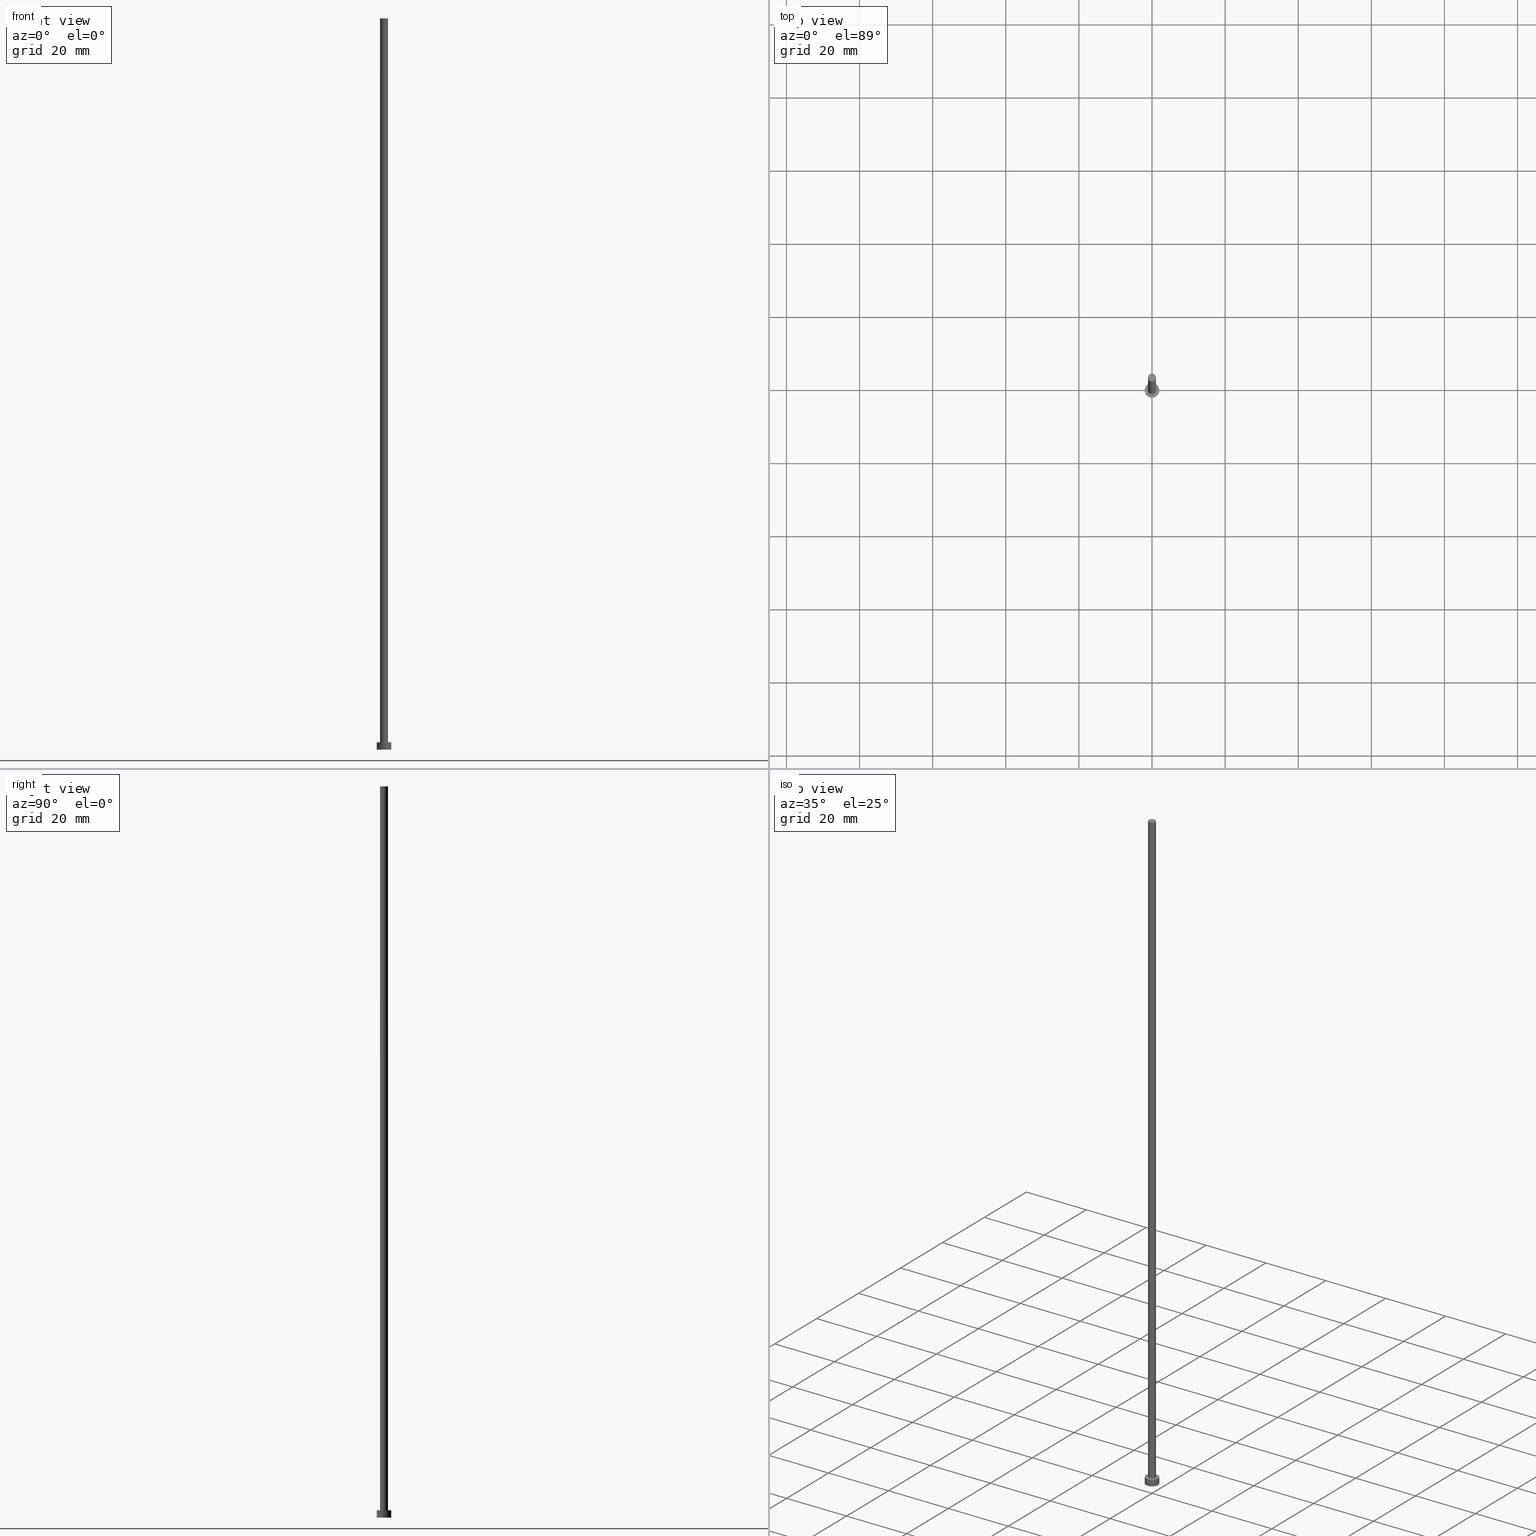
[diagram: canonical four-view strip — front | top / right | iso, engineering-drawing reading convention]
A machine part, canonical four-view strip (front | top / right | iso — engineering-drawing reading convention). The complete STEP part file that produces these views, byte-faithful:
ISO-10303-21;
HEADER;
FILE_DESCRIPTION (( 'STEP AP203' ),
    '1' );
FILE_NAME ('48ea.STEP',
    '2023-02-13T17:06:06',
    ( '' ),
    ( '' ),
    'SwSTEP 2.0',
    'SolidWorks 2019',
    '' );
FILE_SCHEMA (( 'CONFIG_CONTROL_DESIGN' ));
ENDSEC;

DATA;
#1 = CIRCLE ( 'NONE', #154, 2.000000000000000000 ) ;
#2 = DIRECTION ( 'NONE',  ( 1.000000000000000000, 0.000000000000000000, 0.000000000000000000 ) ) ;
#3 = VECTOR ( 'NONE', #12, 1000.000000000000000 ) ;
#4 = PERSON_AND_ORGANIZATION ( #229, #138 ) ;
#5 = VERTEX_POINT ( 'NONE', #105 ) ;
#6 = VECTOR ( 'NONE', #153, 1000.000000000000000 ) ;
#7 = CIRCLE ( 'NONE', #62, 1.100000000000000089 ) ;
#8 = FACE_OUTER_BOUND ( 'NONE', #222, .T. ) ;
#9 = VERTEX_POINT ( 'NONE', #92 ) ;
#10 = FACE_OUTER_BOUND ( 'NONE', #169, .T. ) ;
#11 = ORIENTED_EDGE ( 'NONE', *, *, #30, .T. ) ;
#12 = DIRECTION ( 'NONE',  ( -0.000000000000000000, -0.000000000000000000, -1.000000000000000000 ) ) ;
#13 = ORIENTED_EDGE ( 'NONE', *, *, #110, .F. ) ;
#14 = UNCERTAINTY_MEASURE_WITH_UNIT (LENGTH_MEASURE( 1.000000000000000082E-05 ), #33, 'distance_accuracy_value', 'NONE');
#15 = DIRECTION ( 'NONE',  ( 1.000000000000000000, 0.000000000000000000, -0.000000000000000000 ) ) ;
#16 = EDGE_LOOP ( 'NONE', ( #67, #254, #87, #71 ) ) ;
#17 = CARTESIAN_POINT ( 'NONE',  ( 2.000000000000000000, 2.449293598294706414E-16, 2.000000000000000000 ) ) ;
#18 = APPLICATION_CONTEXT ( 'configuration controlled 3d designs of mechanical parts and assemblies' ) ;
#19 = CIRCLE ( 'NONE', #159, 2.000000000000000000 ) ;
#20 = SECURITY_CLASSIFICATION_LEVEL ( 'unclassified' ) ;
#21 = DIRECTION ( 'NONE',  ( 1.000000000000000000, 0.000000000000000000, 0.000000000000000000 ) ) ;
#22 = EDGE_CURVE ( 'NONE', #5, #9, #164, .T. ) ;
#23 = PERSON_AND_ORGANIZATION ( #229, #138 ) ;
#24 = CYLINDRICAL_SURFACE ( 'NONE', #83, 2.000000000000000000 ) ;
#25 = APPROVAL_ROLE ( '' ) ;
#26 = LINE ( 'NONE', #17, #6 ) ;
#27 = CARTESIAN_POINT ( 'NONE',  ( 0.000000000000000000, 0.000000000000000000, 200.0000000000000000 ) ) ;
#28 = APPROVAL_DATE_TIME ( #61, #73 ) ;
#29 = APPROVAL_PERSON_ORGANIZATION ( #42, #97, #211 ) ;
#30 = EDGE_CURVE ( 'NONE', #5, #90, #26, .T. ) ;
#31 = LOCAL_TIME ( 18, 6, 6.000000000000000000, #233 ) ;
#32 = ORIENTED_EDGE ( 'NONE', *, *, #241, .T. ) ;
#33 =( LENGTH_UNIT ( ) NAMED_UNIT ( * ) SI_UNIT ( .MILLI., .METRE. ) );
#34 = DIRECTION ( 'NONE',  ( -0.000000000000000000, -0.000000000000000000, -1.000000000000000000 ) ) ;
#35 = LOCAL_TIME ( 18, 6, 6.000000000000000000, #152 ) ;
#36 = DIRECTION ( 'NONE',  ( 0.000000000000000000, 0.000000000000000000, 1.000000000000000000 ) ) ;
#37 = CLOSED_SHELL ( 'NONE', ( #255, #134, #85, #60, #151, #199, #184 ) ) ;
#38 = APPROVAL_DATE_TIME ( #214, #247 ) ;
#39 = EDGE_CURVE ( 'NONE', #180, #122, #197, .T. ) ;
#40 = CALENDAR_DATE ( 2023, 13, 2 ) ;
#41 = ORIENTED_EDGE ( 'NONE', *, *, #39, .F. ) ;
#42 = PERSON_AND_ORGANIZATION ( #229, #138 ) ;
#43 = CALENDAR_DATE ( 2023, 13, 2 ) ;
#44 = EDGE_LOOP ( 'NONE', ( #158, #189 ) ) ;
#45 = LINE ( 'NONE', #137, #98 ) ;
#46 = EDGE_CURVE ( 'NONE', #9, #5, #1, .T. ) ;
#47 = CC_DESIGN_APPROVAL ( #73, ( #202 ) ) ;
#48 = PLANE ( 'NONE',  #156 ) ;
#49 = AXIS2_PLACEMENT_3D ( 'NONE', #174, #36, #209 ) ;
#50 = FACE_OUTER_BOUND ( 'NONE', #148, .T. ) ;
#51 = ORIENTED_EDGE ( 'NONE', *, *, #39, .T. ) ;
#52 =( NAMED_UNIT ( * ) PLANE_ANGLE_UNIT ( ) SI_UNIT ( $, .RADIAN. ) );
#53 = DATE_AND_TIME ( #43, #88 ) ;
#54 = DIRECTION ( 'NONE',  ( 1.000000000000000000, 0.000000000000000000, -0.000000000000000000 ) ) ;
#55 = DATE_AND_TIME ( #40, #31 ) ;
#56 = CC_DESIGN_PERSON_AND_ORGANIZATION_ASSIGNMENT ( #80, #74, ( #178 ) ) ;
#57 = DIRECTION ( 'NONE',  ( 0.000000000000000000, 0.000000000000000000, 1.000000000000000000 ) ) ;
#58 = VECTOR ( 'NONE', #252, 1000.000000000000000 ) ;
#59 = CC_DESIGN_APPROVAL ( #247, ( #232 ) ) ;
#60 = ADVANCED_FACE ( 'NONE', ( #210, #108 ), #196, .T. ) ;
#61 = DATE_AND_TIME ( #177, #35 ) ;
#62 = AXIS2_PLACEMENT_3D ( 'NONE', #84, #221, #218 ) ;
#63 = CARTESIAN_POINT ( 'NONE',  ( 1.100000000000000089, 1.347111479062088503E-16, 200.0000000000000000 ) ) ;
#64 = DIRECTION ( 'NONE',  ( -1.000000000000000000, 0.000000000000000000, 0.000000000000000000 ) ) ;
#65 = EDGE_CURVE ( 'NONE', #249, #122, #216, .T. ) ;
#66 = CARTESIAN_POINT ( 'NONE',  ( 0.000000000000000000, 0.000000000000000000, 200.0000000000000000 ) ) ;
#67 = ORIENTED_EDGE ( 'NONE', *, *, #30, .F. ) ;
#68 = CYLINDRICAL_SURFACE ( 'NONE', #96, 1.100000000000000089 ) ;
#69 = EDGE_LOOP ( 'NONE', ( #219, #143 ) ) ;
#70 = PERSON_AND_ORGANIZATION ( #229, #138 ) ;
#71 = ORIENTED_EDGE ( 'NONE', *, *, #160, .T. ) ;
#72 =( GEOMETRIC_REPRESENTATION_CONTEXT ( 3 ) GLOBAL_UNCERTAINTY_ASSIGNED_CONTEXT ( ( #14 ) ) GLOBAL_UNIT_ASSIGNED_CONTEXT ( ( #33, #52, #104 ) ) REPRESENTATION_CONTEXT ( 'NONE', 'WORKASPACE' ) );
#73 = APPROVAL ( #253, 'NEUR�EN�' ) ;
#74 = PERSON_AND_ORGANIZATION_ROLE ( 'creator' ) ;
#75 = ORIENTED_EDGE ( 'NONE', *, *, #241, .F. ) ;
#76 = APPROVAL_ROLE ( '' ) ;
#77 = DIRECTION ( 'NONE',  ( 0.000000000000000000, 0.000000000000000000, 1.000000000000000000 ) ) ;
#78 = APPLICATION_CONTEXT ( 'configuration controlled 3d designs of mechanical parts and assemblies' ) ;
#79 = DIRECTION ( 'NONE',  ( -1.000000000000000000, 0.000000000000000000, 0.000000000000000000 ) ) ;
#80 = PERSON_AND_ORGANIZATION ( #229, #138 ) ;
#81 = DIRECTION ( 'NONE',  ( 0.000000000000000000, 0.000000000000000000, 1.000000000000000000 ) ) ;
#82 = EDGE_CURVE ( 'NONE', #180, #111, #106, .T. ) ;
#83 = AXIS2_PLACEMENT_3D ( 'NONE', #157, #94, #79 ) ;
#84 = CARTESIAN_POINT ( 'NONE',  ( 0.000000000000000000, 0.000000000000000000, 2.000000000000000000 ) ) ;
#85 = ADVANCED_FACE ( 'NONE', ( #109 ), #24, .T. ) ;
#86 = DIRECTION ( 'NONE',  ( 1.000000000000000000, 0.000000000000000000, 0.000000000000000000 ) ) ;
#87 = ORIENTED_EDGE ( 'NONE', *, *, #101, .T. ) ;
#88 = LOCAL_TIME ( 18, 6, 6.000000000000000000, #235 ) ;
#89 = FACE_OUTER_BOUND ( 'NONE', #126, .T. ) ;
#90 = VERTEX_POINT ( 'NONE', #239 ) ;
#91 = DIRECTION ( 'NONE',  ( 1.000000000000000000, 0.000000000000000000, 0.000000000000000000 ) ) ;
#92 = CARTESIAN_POINT ( 'NONE',  ( -2.000000000000000000, 0.000000000000000000, 2.000000000000000000 ) ) ;
#93 = PERSON_AND_ORGANIZATION_ROLE ( 'classification_officer' ) ;
#94 = DIRECTION ( 'NONE',  ( -0.000000000000000000, -0.000000000000000000, -1.000000000000000000 ) ) ;
#95 = APPROVAL_DATE_TIME ( #55, #97 ) ;
#96 = AXIS2_PLACEMENT_3D ( 'NONE', #244, #201, #64 ) ;
#97 = APPROVAL ( #251, 'NEUR�EN�' ) ;
#98 = VECTOR ( 'NONE', #215, 1000.000000000000000 ) ;
#99 = DIRECTION ( 'NONE',  ( 1.000000000000000000, 0.000000000000000000, -0.000000000000000000 ) ) ;
#100 = CARTESIAN_POINT ( 'NONE',  ( 0.000000000000000000, 0.000000000000000000, 0.000000000000000000 ) ) ;
#101 = EDGE_CURVE ( 'NONE', #9, #225, #45, .T. ) ;
#102 = PLANE ( 'NONE',  #118 ) ;
#103 = ORIENTED_EDGE ( 'NONE', *, *, #160, .F. ) ;
#104 =( NAMED_UNIT ( * ) SI_UNIT ( $, .STERADIAN. ) SOLID_ANGLE_UNIT ( ) );
#105 = CARTESIAN_POINT ( 'NONE',  ( 2.000000000000000000, 2.449293598294706414E-16, 2.000000000000000000 ) ) ;
#106 = CIRCLE ( 'NONE', #161, 1.100000000000000089 ) ;
#107 = PERSON_AND_ORGANIZATION_ROLE ( 'design_supplier' ) ;
#108 = FACE_OUTER_BOUND ( 'NONE', #44, .T. ) ;
#109 = FACE_OUTER_BOUND ( 'NONE', #16, .T. ) ;
#110 = EDGE_CURVE ( 'NONE', #111, #180, #144, .T. ) ;
#111 = VERTEX_POINT ( 'NONE', #163 ) ;
#112 = AXIS2_PLACEMENT_3D ( 'NONE', #236, #57, #21 ) ;
#113 = PERSON_AND_ORGANIZATION ( #229, #138 ) ;
#114 = CARTESIAN_POINT ( 'NONE',  ( 0.000000000000000000, 0.000000000000000000, 200.0000000000000000 ) ) ;
#115 = CC_DESIGN_DATE_AND_TIME_ASSIGNMENT ( #53, #172, ( #202 ) ) ;
#116 = SHAPE_DEFINITION_REPRESENTATION ( #185, #238 ) ;
#117 = APPROVAL_PERSON_ORGANIZATION ( #136, #247, #25 ) ;
#118 = AXIS2_PLACEMENT_3D ( 'NONE', #168, #205, #99 ) ;
#119 = LINE ( 'NONE', #63, #3 ) ;
#120 = CC_DESIGN_SECURITY_CLASSIFICATION ( #202, ( #232 ) ) ;
#121 = CARTESIAN_POINT ( 'NONE',  ( 0.000000000000000000, 0.000000000000000000, 200.0000000000000000 ) ) ;
#122 = VERTEX_POINT ( 'NONE', #240 ) ;
#123 = CYLINDRICAL_SURFACE ( 'NONE', #128, 1.100000000000000089 ) ;
#124 = ORIENTED_EDGE ( 'NONE', *, *, #22, .F. ) ;
#125 = DIRECTION ( 'NONE',  ( -0.000000000000000000, -0.000000000000000000, -1.000000000000000000 ) ) ;
#126 = EDGE_LOOP ( 'NONE', ( #245, #132, #51, #183 ) ) ;
#127 = CC_DESIGN_DATE_AND_TIME_ASSIGNMENT ( #227, #131, ( #178 ) ) ;
#128 = AXIS2_PLACEMENT_3D ( 'NONE', #66, #125, #142 ) ;
#129 = DIRECTION ( 'NONE',  ( -1.000000000000000000, 0.000000000000000000, 0.000000000000000000 ) ) ;
#130 = ORIENTED_EDGE ( 'NONE', *, *, #234, .T. ) ;
#131 = DATE_TIME_ROLE ( 'creation_date' ) ;
#132 = ORIENTED_EDGE ( 'NONE', *, *, #82, .F. ) ;
#133 = EDGE_LOOP ( 'NONE', ( #13, #130, #206, #41 ) ) ;
#134 = ADVANCED_FACE ( 'NONE', ( #10 ), #207, .T. ) ;
#135 = DIRECTION ( 'NONE',  ( 1.000000000000000000, 0.000000000000000000, 0.000000000000000000 ) ) ;
#136 = PERSON_AND_ORGANIZATION ( #229, #138 ) ;
#137 = CARTESIAN_POINT ( 'NONE',  ( -2.000000000000000000, 0.000000000000000000, 2.000000000000000000 ) ) ;
#138 = ORGANIZATION ( 'NEUR�EN�', 'NEUR�EN�', '' ) ;
#139 = FACE_OUTER_BOUND ( 'NONE', #133, .T. ) ;
#140 = AXIS2_PLACEMENT_3D ( 'NONE', #141, #34, #129 ) ;
#141 = CARTESIAN_POINT ( 'NONE',  ( 0.000000000000000000, 0.000000000000000000, 2.000000000000000000 ) ) ;
#142 = DIRECTION ( 'NONE',  ( -1.000000000000000000, 0.000000000000000000, 0.000000000000000000 ) ) ;
#143 = ORIENTED_EDGE ( 'NONE', *, *, #65, .F. ) ;
#144 = CIRCLE ( 'NONE', #200, 1.100000000000000089 ) ;
#145 = AXIS2_PLACEMENT_3D ( 'NONE', #167, #203, #86 ) ;
#146 = COORDINATED_UNIVERSAL_TIME_OFFSET ( 1, 0, .AHEAD. ) ;
#147 = APPROVAL_PERSON_ORGANIZATION ( #113, #73, #76 ) ;
#148 = EDGE_LOOP ( 'NONE', ( #103, #75 ) ) ;
#149 = COORDINATED_UNIVERSAL_TIME_OFFSET ( 1, 0, .AHEAD. ) ;
#150 = CARTESIAN_POINT ( 'NONE',  ( 0.000000000000000000, 0.000000000000000000, 2.000000000000000000 ) ) ;
#151 = ADVANCED_FACE ( 'NONE', ( #50 ), #102, .F. ) ;
#152 = COORDINATED_UNIVERSAL_TIME_OFFSET ( 1, 0, .AHEAD. ) ;
#153 = DIRECTION ( 'NONE',  ( -0.000000000000000000, -0.000000000000000000, -1.000000000000000000 ) ) ;
#154 = AXIS2_PLACEMENT_3D ( 'NONE', #150, #176, #231 ) ;
#155 = APPLICATION_PROTOCOL_DEFINITION ( 'international standard', 'config_control_design', 1994, #78 ) ;
#156 = AXIS2_PLACEMENT_3D ( 'NONE', #121, #223, #15 ) ;
#157 = CARTESIAN_POINT ( 'NONE',  ( 0.000000000000000000, 0.000000000000000000, 2.000000000000000000 ) ) ;
#158 = ORIENTED_EDGE ( 'NONE', *, *, #46, .T. ) ;
#159 = AXIS2_PLACEMENT_3D ( 'NONE', #100, #224, #243 ) ;
#160 = EDGE_CURVE ( 'NONE', #225, #90, #19, .T. ) ;
#161 = AXIS2_PLACEMENT_3D ( 'NONE', #27, #173, #135 ) ;
#162 = CC_DESIGN_PERSON_AND_ORGANIZATION_ASSIGNMENT ( #4, #93, ( #202 ) ) ;
#163 = CARTESIAN_POINT ( 'NONE',  ( 1.100000000000000089, 1.347111479062088503E-16, 200.0000000000000000 ) ) ;
#164 = CIRCLE ( 'NONE', #217, 2.000000000000000000 ) ;
#165 = PRODUCT ( '48ea', '48ea', '', ( #248 ) ) ;
#166 = ORIENTED_EDGE ( 'NONE', *, *, #101, .F. ) ;
#167 = CARTESIAN_POINT ( 'NONE',  ( 0.000000000000000000, 0.000000000000000000, 0.000000000000000000 ) ) ;
#168 = CARTESIAN_POINT ( 'NONE',  ( 0.000000000000000000, 0.000000000000000000, 0.000000000000000000 ) ) ;
#169 = EDGE_LOOP ( 'NONE', ( #124, #11, #32, #166 ) ) ;
#170 = LOCAL_TIME ( 18, 6, 6.000000000000000000, #149 ) ;
#171 = CC_DESIGN_PERSON_AND_ORGANIZATION_ASSIGNMENT ( #23, #107, ( #232 ) ) ;
#172 = DATE_TIME_ROLE ( 'classification_date' ) ;
#173 = DIRECTION ( 'NONE',  ( 0.000000000000000000, 0.000000000000000000, 1.000000000000000000 ) ) ;
#174 = CARTESIAN_POINT ( 'NONE',  ( 0.000000000000000000, 0.000000000000000000, 0.000000000000000000 ) ) ;
#175 = CALENDAR_DATE ( 2023, 13, 2 ) ;
#176 = DIRECTION ( 'NONE',  ( 0.000000000000000000, 0.000000000000000000, 1.000000000000000000 ) ) ;
#177 = CALENDAR_DATE ( 2023, 13, 2 ) ;
#178 = PRODUCT_DEFINITION ( 'NEZN�M�', '', #232, #194 ) ;
#179 = CARTESIAN_POINT ( 'NONE',  ( -1.100000000000000089, 0.000000000000000000, 200.0000000000000000 ) ) ;
#180 = VERTEX_POINT ( 'NONE', #179 ) ;
#181 = AXIS2_PLACEMENT_3D ( 'NONE', #193, #81, #54 ) ;
#182 = APPLICATION_PROTOCOL_DEFINITION ( 'international standard', 'config_control_design', 1994, #18 ) ;
#183 = ORIENTED_EDGE ( 'NONE', *, *, #204, .T. ) ;
#184 = ADVANCED_FACE ( 'NONE', ( #8 ), #48, .T. ) ;
#185 = PRODUCT_DEFINITION_SHAPE ( 'NONE', 'NONE',  #178 ) ;
#186 = CC_DESIGN_APPROVAL ( #97, ( #178 ) ) ;
#187 = CARTESIAN_POINT ( 'NONE',  ( -2.000000000000000000, 0.000000000000000000, 0.000000000000000000 ) ) ;
#188 = ORIENTED_EDGE ( 'NONE', *, *, #82, .T. ) ;
#189 = ORIENTED_EDGE ( 'NONE', *, *, #22, .T. ) ;
#190 = CALENDAR_DATE ( 2023, 13, 2 ) ;
#191 = CARTESIAN_POINT ( 'NONE',  ( 0.000000000000000000, 0.000000000000000000, 2.000000000000000000 ) ) ;
#192 = LOCAL_TIME ( 18, 6, 6.000000000000000000, #146 ) ;
#193 = CARTESIAN_POINT ( 'NONE',  ( 0.000000000000000000, 0.000000000000000000, 2.000000000000000000 ) ) ;
#194 = DESIGN_CONTEXT ( 'detailed design', #78, 'design' ) ;
#195 = PERSON_AND_ORGANIZATION ( #229, #138 ) ;
#196 = PLANE ( 'NONE',  #181 ) ;
#197 = LINE ( 'NONE', #212, #58 ) ;
#198 = DIRECTION ( 'NONE',  ( 0.000000000000000000, 0.000000000000000000, 1.000000000000000000 ) ) ;
#199 = ADVANCED_FACE ( 'NONE', ( #89 ), #123, .T. ) ;
#200 = AXIS2_PLACEMENT_3D ( 'NONE', #114, #198, #91 ) ;
#201 = DIRECTION ( 'NONE',  ( -0.000000000000000000, -0.000000000000000000, -1.000000000000000000 ) ) ;
#202 = SECURITY_CLASSIFICATION ( '', '', #20 ) ;
#203 = DIRECTION ( 'NONE',  ( 0.000000000000000000, 0.000000000000000000, 1.000000000000000000 ) ) ;
#204 = EDGE_CURVE ( 'NONE', #122, #249, #7, .T. ) ;
#205 = DIRECTION ( 'NONE',  ( 0.000000000000000000, 0.000000000000000000, 1.000000000000000000 ) ) ;
#206 = ORIENTED_EDGE ( 'NONE', *, *, #65, .T. ) ;
#207 = CYLINDRICAL_SURFACE ( 'NONE', #140, 2.000000000000000000 ) ;
#208 = APPROVAL_STATUS ( 'not_yet_approved' ) ;
#209 = DIRECTION ( 'NONE',  ( 1.000000000000000000, 0.000000000000000000, 0.000000000000000000 ) ) ;
#210 = FACE_BOUND ( 'NONE', #69, .T. ) ;
#211 = APPROVAL_ROLE ( '' ) ;
#212 = CARTESIAN_POINT ( 'NONE',  ( -1.100000000000000089, 0.000000000000000000, 200.0000000000000000 ) ) ;
#213 = PERSON_AND_ORGANIZATION_ROLE ( 'design_owner' ) ;
#214 = DATE_AND_TIME ( #175, #170 ) ;
#215 = DIRECTION ( 'NONE',  ( -0.000000000000000000, -0.000000000000000000, -1.000000000000000000 ) ) ;
#216 = CIRCLE ( 'NONE', #112, 1.100000000000000089 ) ;
#217 = AXIS2_PLACEMENT_3D ( 'NONE', #191, #77, #2 ) ;
#218 = DIRECTION ( 'NONE',  ( 1.000000000000000000, 0.000000000000000000, 0.000000000000000000 ) ) ;
#219 = ORIENTED_EDGE ( 'NONE', *, *, #204, .F. ) ;
#220 = CC_DESIGN_PERSON_AND_ORGANIZATION_ASSIGNMENT ( #70, #213, ( #165 ) ) ;
#221 = DIRECTION ( 'NONE',  ( 0.000000000000000000, 0.000000000000000000, 1.000000000000000000 ) ) ;
#222 = EDGE_LOOP ( 'NONE', ( #188, #228 ) ) ;
#223 = DIRECTION ( 'NONE',  ( 0.000000000000000000, 0.000000000000000000, 1.000000000000000000 ) ) ;
#224 = DIRECTION ( 'NONE',  ( 0.000000000000000000, 0.000000000000000000, 1.000000000000000000 ) ) ;
#225 = VERTEX_POINT ( 'NONE', #187 ) ;
#226 = CC_DESIGN_PERSON_AND_ORGANIZATION_ASSIGNMENT ( #195, #230, ( #232 ) ) ;
#227 = DATE_AND_TIME ( #190, #192 ) ;
#228 = ORIENTED_EDGE ( 'NONE', *, *, #110, .T. ) ;
#229 = PERSON ( 'NEUR�EN�', 'NEUR�EN�', 'NEUR�EN�', ('NEUR�EN�'), ('NEUR�EN�'), ('NEUR�EN�') ) ;
#230 = PERSON_AND_ORGANIZATION_ROLE ( 'creator' ) ;
#231 = DIRECTION ( 'NONE',  ( 1.000000000000000000, 0.000000000000000000, 0.000000000000000000 ) ) ;
#232 = PRODUCT_DEFINITION_FORMATION_WITH_SPECIFIED_SOURCE ( 'LIBOVOLN�', '', #165, .NOT_KNOWN. ) ;
#233 = COORDINATED_UNIVERSAL_TIME_OFFSET ( 1, 0, .AHEAD. ) ;
#234 = EDGE_CURVE ( 'NONE', #111, #249, #119, .T. ) ;
#235 = COORDINATED_UNIVERSAL_TIME_OFFSET ( 1, 0, .AHEAD. ) ;
#236 = CARTESIAN_POINT ( 'NONE',  ( 0.000000000000000000, 0.000000000000000000, 2.000000000000000000 ) ) ;
#237 = MANIFOLD_SOLID_BREP ( 'P�idat vysunut�m3', #37 ) ;
#238 = ADVANCED_BREP_SHAPE_REPRESENTATION ( '48ea', ( #237, #49 ), #72 ) ;
#239 = CARTESIAN_POINT ( 'NONE',  ( 2.000000000000000000, 2.449293598294706414E-16, 0.000000000000000000 ) ) ;
#240 = CARTESIAN_POINT ( 'NONE',  ( -1.100000000000000089, 0.000000000000000000, 2.000000000000000000 ) ) ;
#241 = EDGE_CURVE ( 'NONE', #90, #225, #250, .T. ) ;
#242 = PRODUCT_RELATED_PRODUCT_CATEGORY ( 'detail', '', ( #165 ) ) ;
#243 = DIRECTION ( 'NONE',  ( 1.000000000000000000, 0.000000000000000000, 0.000000000000000000 ) ) ;
#244 = CARTESIAN_POINT ( 'NONE',  ( 0.000000000000000000, 0.000000000000000000, 200.0000000000000000 ) ) ;
#245 = ORIENTED_EDGE ( 'NONE', *, *, #234, .F. ) ;
#246 = CARTESIAN_POINT ( 'NONE',  ( 1.100000000000000089, 1.347111479062088503E-16, 2.000000000000000000 ) ) ;
#247 = APPROVAL ( #208, 'NEUR�EN�' ) ;
#248 = MECHANICAL_CONTEXT ( 'NONE', #18, 'mechanical' ) ;
#249 = VERTEX_POINT ( 'NONE', #246 ) ;
#250 = CIRCLE ( 'NONE', #145, 2.000000000000000000 ) ;
#251 = APPROVAL_STATUS ( 'not_yet_approved' ) ;
#252 = DIRECTION ( 'NONE',  ( -0.000000000000000000, -0.000000000000000000, -1.000000000000000000 ) ) ;
#253 = APPROVAL_STATUS ( 'not_yet_approved' ) ;
#254 = ORIENTED_EDGE ( 'NONE', *, *, #46, .F. ) ;
#255 = ADVANCED_FACE ( 'NONE', ( #139 ), #68, .T. ) ;
ENDSEC;
END-ISO-10303-21;
